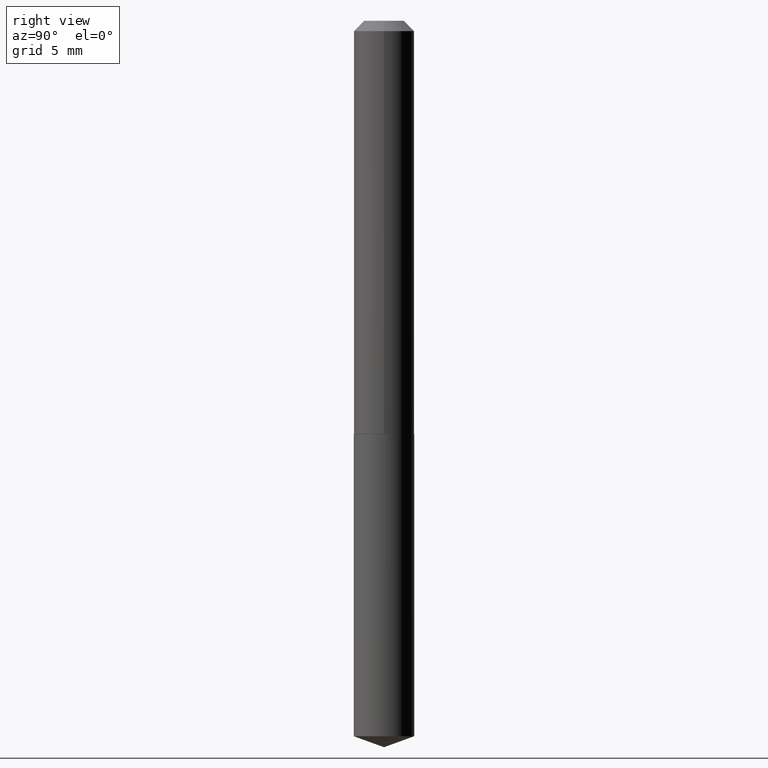
[diagram: clean part render]
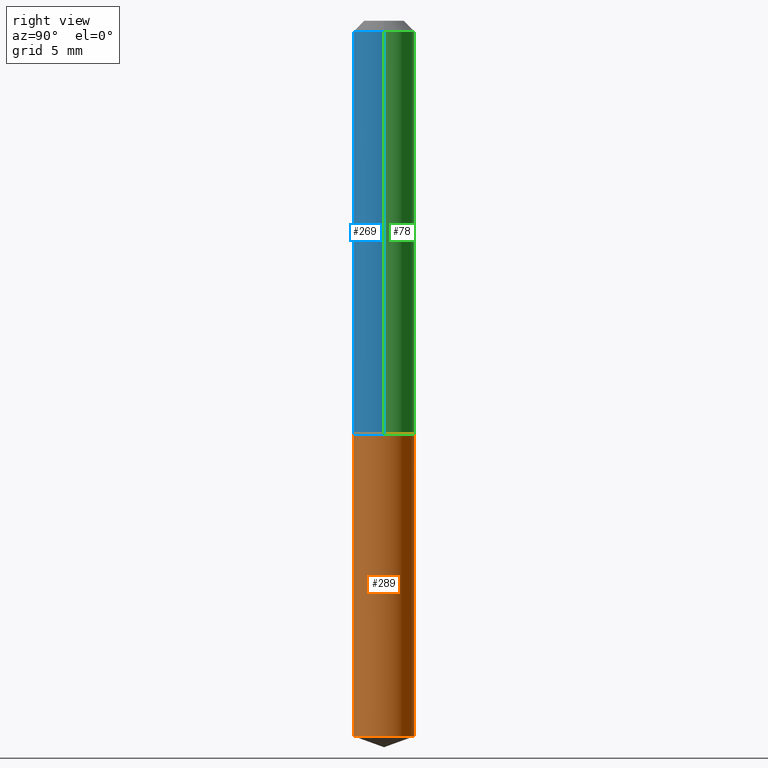
[diagram: same view with three faces highlighted in distinct colors, each labeled with its STEP entity id]
A machine part, right view with three faces highlighted in distinct colors.
Their STEP definitions:

[orange] entity #289 — the highlighted cylindrical surface (edge-blend (fillet) strip) has radius 2.3114 mm, axis along (-0, 0, 1).
#1 = CARTESIAN_POINT ( 'NONE',  ( 3.043385929297402732E-29, -4.345148526190295143E-15, -1.244500000000000162 ) ) ;
#2 = DIRECTION ( 'NONE',  ( -6.982962677686265922E-15, -1.000000000000000000, 3.002030762268421058E-15 ) ) ;
#19 = AXIS2_PLACEMENT_3D ( 'NONE', #276, #187, #338 ) ;
#26 = CARTESIAN_POINT ( 'NONE',  ( 6.465938895417437096E-16, 0.09099999999999247580, -2.154378708681776278 ) ) ;
#31 = CARTESIAN_POINT ( 'NONE',  ( -6.354496036694198049E-16, -0.09100000000000434131, -1.244499999999999718 ) ) ;
#32 = EDGE_CURVE ( 'NONE', #242, #264, #194, .T. ) ;
#43 = CARTESIAN_POINT ( 'NONE',  ( 6.465938895417215229E-16, 0.09099999999999566769, -1.244500000000000384 ) ) ;
#59 = AXIS2_PLACEMENT_3D ( 'NONE', #1, #86, #234 ) ;
#62 = CARTESIAN_POINT ( 'NONE',  ( -6.354496036693975195E-16, -0.09100000000000753320, -2.154378708681775834 ) ) ;
#70 = VERTEX_POINT ( 'NONE', #171 ) ;
#83 = ORIENTED_EDGE ( 'NONE', *, *, #282, .F. ) ;
#86 = DIRECTION ( 'NONE',  ( -2.445375204196861726E-29, 3.491615382217849470E-15, 1.000000000000000000 ) ) ;
#88 = DIRECTION ( 'NONE',  ( -2.445375204196861726E-29, 3.491615382217849470E-15, 1.000000000000000000 ) ) ;
#97 = EDGE_CURVE ( 'NONE', #70, #264, #221, .T. ) ;
#139 = VECTOR ( 'NONE', #201, 39.37007874015748143 ) ;
#151 = LINE ( 'NONE', #31, #347 ) ;
#155 = CARTESIAN_POINT ( 'NONE',  ( 6.465938895417439069E-16, 0.09099999999999563993, -1.244500000000000384 ) ) ;
#157 = ORIENTED_EDGE ( 'NONE', *, *, #206, .T. ) ;
#159 = VERTEX_POINT ( 'NONE', #62 ) ;
#171 = CARTESIAN_POINT ( 'NONE',  ( -6.354496036694198049E-16, -0.09100000000000434131, -1.244499999999999718 ) ) ;
#187 = DIRECTION ( 'NONE',  ( -2.445375204196861726E-29, 3.491615382217849470E-15, 1.000000000000000000 ) ) ;
#194 = LINE ( 'NONE', #43, #139 ) ;
#201 = DIRECTION ( 'NONE',  ( -2.445375204196862006E-29, 3.491615382217849075E-15, 1.000000000000000000 ) ) ;
#206 = EDGE_CURVE ( 'NONE', #159, #242, #329, .T. ) ;
#221 = CIRCLE ( 'NONE', #59, 0.09099999999999999756 ) ;
#234 = DIRECTION ( 'NONE',  ( -6.982962677686265922E-15, -1.000000000000000000, 3.002030762268421058E-15 ) ) ;
#242 = VERTEX_POINT ( 'NONE', #26 ) ;
#246 = AXIS2_PLACEMENT_3D ( 'NONE', #327, #88, #2 ) ;
#264 = VERTEX_POINT ( 'NONE', #155 ) ;
#276 = CARTESIAN_POINT ( 'NONE',  ( 3.043385929297402732E-29, -4.345148526190295143E-15, -1.244500000000000162 ) ) ;
#282 = EDGE_CURVE ( 'NONE', #159, #70, #151, .T. ) ;
#289 = ADVANCED_FACE ( 'NONE', ( #366 ), #368, .T. ) ;
#306 = ORIENTED_EDGE ( 'NONE', *, *, #97, .F. ) ;
#312 = DIRECTION ( 'NONE',  ( -2.445375204196862006E-29, 3.491615382217849075E-15, 1.000000000000000000 ) ) ;
#327 = CARTESIAN_POINT ( 'NONE',  ( 5.268380762334477360E-29, -7.522095021376097448E-15, -2.154378708681776278 ) ) ;
#329 = CIRCLE ( 'NONE', #246, 0.09099999999999999756 ) ;
#338 = DIRECTION ( 'NONE',  ( -6.982962677686265922E-15, -1.000000000000000000, 3.002030762268421058E-15 ) ) ;
#347 = VECTOR ( 'NONE', #312, 39.37007874015748143 ) ;
#348 = ORIENTED_EDGE ( 'NONE', *, *, #32, .T. ) ;
#366 = FACE_OUTER_BOUND ( 'NONE', #386, .T. ) ;
#368 = CYLINDRICAL_SURFACE ( 'NONE', #19, 0.09099999999999999756 ) ;
#386 = EDGE_LOOP ( 'NONE', ( #157, #348, #306, #83 ) ) ;

[blue] entity #269 — the highlighted cylindrical surface (edge-blend (fillet) strip) has radius 2.3114 mm, axis along (-0, 0, 1).
#10 = CARTESIAN_POINT ( 'NONE',  ( -0.09099999999999999756, -1.579661899138169232E-15, -0.03125000000000020817 ) ) ;
#13 = CYLINDRICAL_SURFACE ( 'NONE', #68, 0.09100000000000006695 ) ;
#15 = CARTESIAN_POINT ( 'NONE',  ( 0.000000000000000000, 0.000000000000000000, 0.000000000000000000 ) ) ;
#16 = ORIENTED_EDGE ( 'NONE', *, *, #345, .F. ) ;
#34 = LINE ( 'NONE', #343, #383 ) ;
#35 = LINE ( 'NONE', #124, #262 ) ;
#36 = DIRECTION ( 'NONE',  ( 1.000000000000000000, -6.982962677686265922E-15, 4.876176775795936353E-29 ) ) ;
#40 = EDGE_CURVE ( 'NONE', #340, #252, #84, .T. ) ;
#51 = CARTESIAN_POINT ( 'NONE',  ( 7.642090019328602662E-31, -1.091087918388490267E-16, -0.03125000000000020817 ) ) ;
#55 = CARTESIAN_POINT ( 'NONE',  ( 0.09099999999999999756, -7.445583955082992766E-16, -0.03125000000000020817 ) ) ;
#68 = AXIS2_PLACEMENT_3D ( 'NONE', #15, #277, #36 ) ;
#71 = FACE_OUTER_BOUND ( 'NONE', #323, .T. ) ;
#84 = CIRCLE ( 'NONE', #182, 0.09099999999999999756 ) ;
#115 = DIRECTION ( 'NONE',  ( -2.445468806185136597E-29, 3.491481338843145583E-15, 1.000000000000000000 ) ) ;
#124 = CARTESIAN_POINT ( 'NONE',  ( 0.09100000000000006695, -6.354496036694506690E-16, 4.437320865974305243E-30 ) ) ;
#125 = DIRECTION ( 'NONE',  ( -2.445468806185136597E-29, 3.491481338843145583E-15, 1.000000000000000000 ) ) ;
#152 = AXIS2_PLACEMENT_3D ( 'NONE', #362, #115, #204 ) ;
#154 = EDGE_CURVE ( 'NONE', #311, #367, #163, .T. ) ;
#158 = CARTESIAN_POINT ( 'NONE',  ( 0.09100000000000013634, -4.978852389190325393E-15, -1.244000000000000217 ) ) ;
#163 = CIRCLE ( 'NONE', #152, 0.09100000000000013634 ) ;
#167 = DIRECTION ( 'NONE',  ( 1.000000000000000000, -6.982962677686265922E-15, 0.000000000000000000 ) ) ;
#182 = AXIS2_PLACEMENT_3D ( 'NONE', #51, #125, #167 ) ;
#204 = DIRECTION ( 'NONE',  ( 1.000000000000000000, -6.982962677686269077E-15, 0.000000000000000000 ) ) ;
#217 = ORIENTED_EDGE ( 'NONE', *, *, #40, .F. ) ;
#241 = DIRECTION ( 'NONE',  ( -2.445468806185136877E-29, 3.491481338843145188E-15, 1.000000000000000000 ) ) ;
#245 = DIRECTION ( 'NONE',  ( -2.445468806185136877E-29, 3.491481338843145188E-15, 1.000000000000000000 ) ) ;
#252 = VERTEX_POINT ( 'NONE', #55 ) ;
#262 = VECTOR ( 'NONE', #241, 39.37007874015748143 ) ;
#269 = ADVANCED_FACE ( 'NONE', ( #71 ), #13, .T. ) ;
#277 = DIRECTION ( 'NONE',  ( -2.445468806185136597E-29, 3.491481338843145583E-15, 1.000000000000000000 ) ) ;
#304 = ORIENTED_EDGE ( 'NONE', *, *, #154, .T. ) ;
#309 = EDGE_CURVE ( 'NONE', #367, #252, #35, .T. ) ;
#311 = VERTEX_POINT ( 'NONE', #372 ) ;
#317 = ORIENTED_EDGE ( 'NONE', *, *, #309, .T. ) ;
#323 = EDGE_LOOP ( 'NONE', ( #16, #304, #317, #217 ) ) ;
#340 = VERTEX_POINT ( 'NONE', #10 ) ;
#343 = CARTESIAN_POINT ( 'NONE',  ( -0.09100000000000006695, 6.465938895416916448E-16, -4.476230932131967703E-30 ) ) ;
#345 = EDGE_CURVE ( 'NONE', #311, #340, #34, .T. ) ;
#362 = CARTESIAN_POINT ( 'NONE',  ( 3.042163194894310491E-29, -4.343402785520873640E-15, -1.244000000000000217 ) ) ;
#367 = VERTEX_POINT ( 'NONE', #158 ) ;
#372 = CARTESIAN_POINT ( 'NONE',  ( -0.09100000000000013634, -3.696808895979181896E-15, -1.244000000000000217 ) ) ;
#383 = VECTOR ( 'NONE', #245, 39.37007874015748143 ) ;

[green] entity #78 — the highlighted cylindrical surface (edge-blend (fillet) strip) has radius 2.3114 mm, axis along (-0, 0, 1).
#3 = ORIENTED_EDGE ( 'NONE', *, *, #109, .T. ) ;
#10 = CARTESIAN_POINT ( 'NONE',  ( -0.09099999999999999756, -1.579661899138169232E-15, -0.03125000000000020817 ) ) ;
#17 = DIRECTION ( 'NONE',  ( 1.000000000000000000, -6.982962677686265922E-15, 0.000000000000000000 ) ) ;
#29 = CARTESIAN_POINT ( 'NONE',  ( 3.042163194894310491E-29, -4.343402785520873640E-15, -1.244000000000000217 ) ) ;
#30 = DIRECTION ( 'NONE',  ( -2.445468806185136597E-29, 3.491481338843145583E-15, 1.000000000000000000 ) ) ;
#34 = LINE ( 'NONE', #343, #383 ) ;
#35 = LINE ( 'NONE', #124, #262 ) ;
#45 = EDGE_CURVE ( 'NONE', #252, #340, #191, .T. ) ;
#47 = AXIS2_PLACEMENT_3D ( 'NONE', #161, #284, #17 ) ;
#55 = CARTESIAN_POINT ( 'NONE',  ( 0.09099999999999999756, -7.445583955082992766E-16, -0.03125000000000020817 ) ) ;
#78 = ADVANCED_FACE ( 'NONE', ( #232 ), #360, .T. ) ;
#91 = DIRECTION ( 'NONE',  ( 1.000000000000000000, -6.982962677686269077E-15, 0.000000000000000000 ) ) ;
#94 = ORIENTED_EDGE ( 'NONE', *, *, #345, .T. ) ;
#109 = EDGE_CURVE ( 'NONE', #367, #311, #195, .T. ) ;
#119 = AXIS2_PLACEMENT_3D ( 'NONE', #361, #303, #175 ) ;
#124 = CARTESIAN_POINT ( 'NONE',  ( 0.09100000000000006695, -6.354496036694506690E-16, 4.437320865974305243E-30 ) ) ;
#134 = EDGE_LOOP ( 'NONE', ( #3, #94, #192, #378 ) ) ;
#146 = AXIS2_PLACEMENT_3D ( 'NONE', #29, #30, #91 ) ;
#158 = CARTESIAN_POINT ( 'NONE',  ( 0.09100000000000013634, -4.978852389190325393E-15, -1.244000000000000217 ) ) ;
#161 = CARTESIAN_POINT ( 'NONE',  ( 7.642090019328602662E-31, -1.091087918388490267E-16, -0.03125000000000020817 ) ) ;
#175 = DIRECTION ( 'NONE',  ( 1.000000000000000000, -6.982962677686265922E-15, 4.876176775795936353E-29 ) ) ;
#191 = CIRCLE ( 'NONE', #47, 0.09099999999999999756 ) ;
#192 = ORIENTED_EDGE ( 'NONE', *, *, #45, .F. ) ;
#195 = CIRCLE ( 'NONE', #146, 0.09100000000000013634 ) ;
#232 = FACE_OUTER_BOUND ( 'NONE', #134, .T. ) ;
#241 = DIRECTION ( 'NONE',  ( -2.445468806185136877E-29, 3.491481338843145188E-15, 1.000000000000000000 ) ) ;
#245 = DIRECTION ( 'NONE',  ( -2.445468806185136877E-29, 3.491481338843145188E-15, 1.000000000000000000 ) ) ;
#252 = VERTEX_POINT ( 'NONE', #55 ) ;
#262 = VECTOR ( 'NONE', #241, 39.37007874015748143 ) ;
#284 = DIRECTION ( 'NONE',  ( -2.445468806185136597E-29, 3.491481338843145583E-15, 1.000000000000000000 ) ) ;
#303 = DIRECTION ( 'NONE',  ( -2.445468806185136597E-29, 3.491481338843145583E-15, 1.000000000000000000 ) ) ;
#309 = EDGE_CURVE ( 'NONE', #367, #252, #35, .T. ) ;
#311 = VERTEX_POINT ( 'NONE', #372 ) ;
#340 = VERTEX_POINT ( 'NONE', #10 ) ;
#343 = CARTESIAN_POINT ( 'NONE',  ( -0.09100000000000006695, 6.465938895416916448E-16, -4.476230932131967703E-30 ) ) ;
#345 = EDGE_CURVE ( 'NONE', #311, #340, #34, .T. ) ;
#360 = CYLINDRICAL_SURFACE ( 'NONE', #119, 0.09100000000000006695 ) ;
#361 = CARTESIAN_POINT ( 'NONE',  ( 0.000000000000000000, 0.000000000000000000, 0.000000000000000000 ) ) ;
#367 = VERTEX_POINT ( 'NONE', #158 ) ;
#372 = CARTESIAN_POINT ( 'NONE',  ( -0.09100000000000013634, -3.696808895979181896E-15, -1.244000000000000217 ) ) ;
#378 = ORIENTED_EDGE ( 'NONE', *, *, #309, .F. ) ;
#383 = VECTOR ( 'NONE', #245, 39.37007874015748143 ) ;